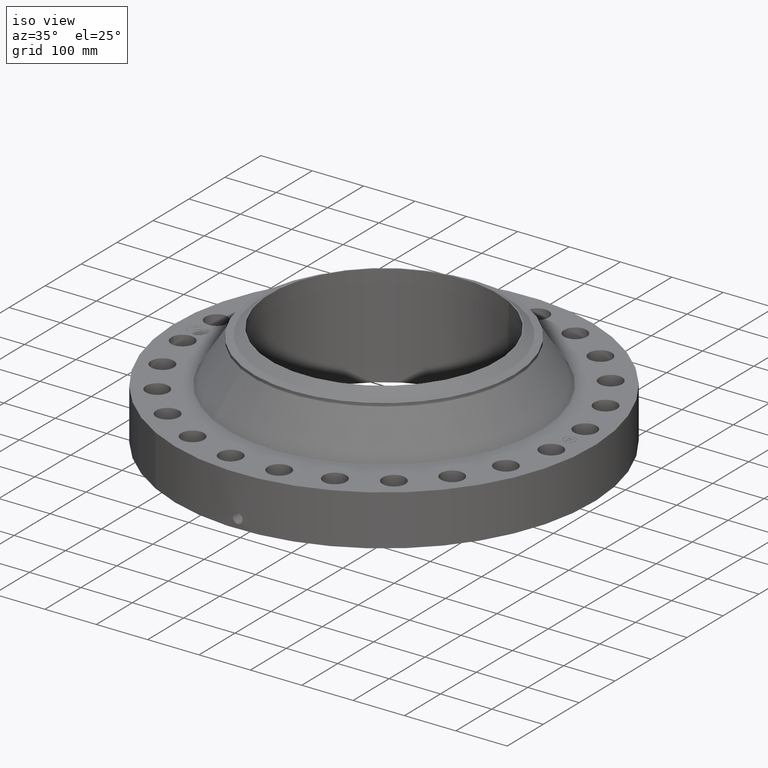
[diagram: clean part render]
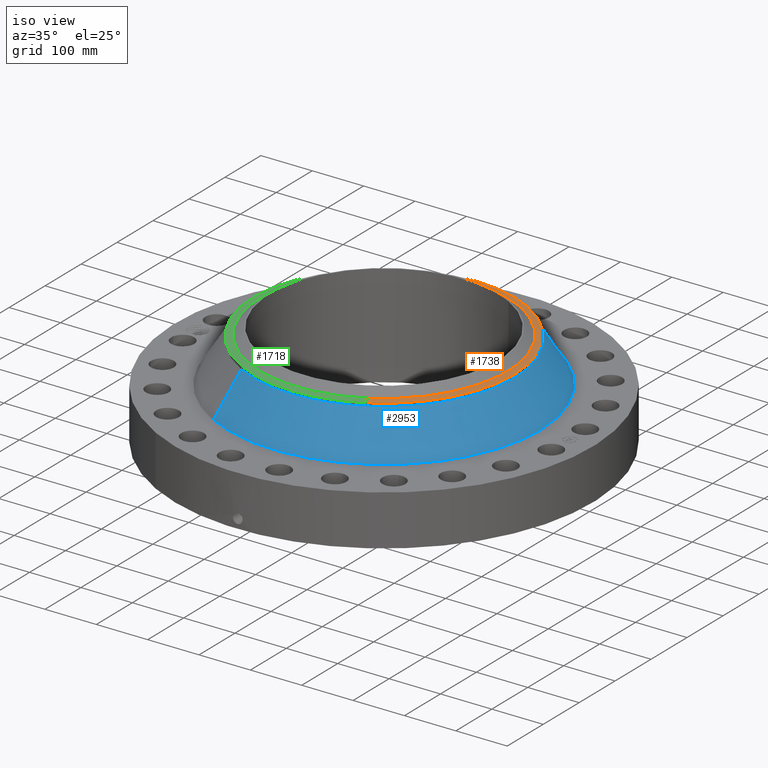
[diagram: same view with three faces highlighted in distinct colors, each labeled with its STEP entity id]
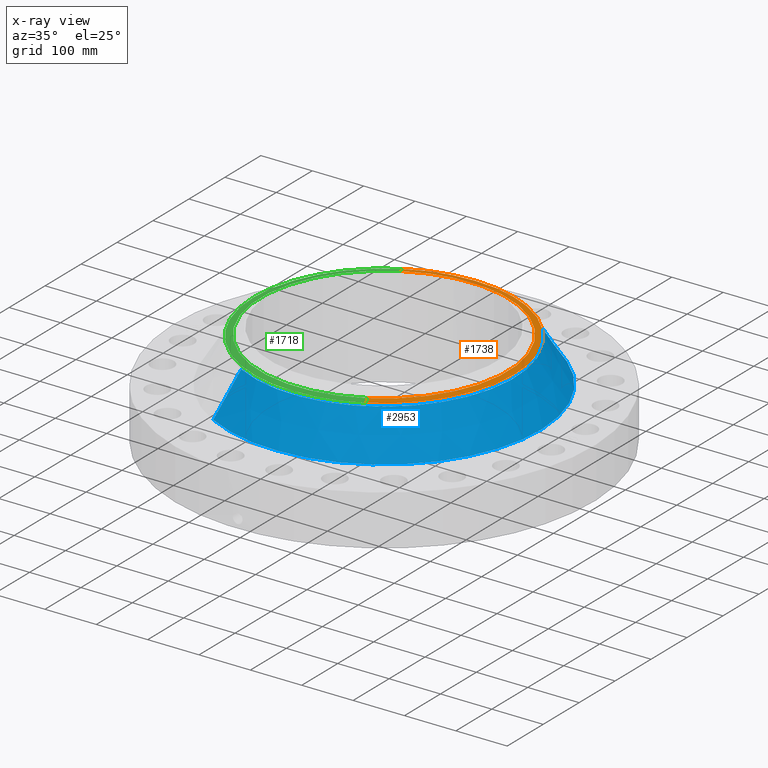
[diagram: x-ray of the same camera — body ghosted, the three highlighted faces saturated]
A machine part, iso view with three faces highlighted in distinct colors.
The next image is the same camera in x-ray (body ghosted, the three faces saturated) — at least one of them is partly hidden behind the body in this view.
Their STEP definitions:

[orange] entity #1738 — the highlighted conical surface has half-angle 80 deg.
#1347=AXIS2_PLACEMENT_3D('Circle Axis2P3D',#1345,#1346,$) ;
#1683=AXIS2_PLACEMENT_3D('Cone Axis2P3D',#1680,#1681,#1682) ;
#1721=AXIS2_PLACEMENT_3D('Circle Axis2P3D',#1719,#1720,$) ;
#1728=AXIS2_PLACEMENT_3D('Circle Axis2P3D',#1726,#1727,$) ;
#1323=CARTESIAN_POINT('Vertex',(-4.55238223415,8.33307978416,7.35641601925)) ;
#1330=CARTESIAN_POINT('Vertex',(4.55238223415,-8.33307978416,7.35641601925)) ;
#1345=CARTESIAN_POINT('Axis2P3D Location',(0.,0.,7.35641601925)) ;
#1680=CARTESIAN_POINT('Axis2P3D Location',(0.,0.,7.35641601925)) ;
#1685=CARTESIAN_POINT('Line Origine',(4.67331881011,-8.55445270155,7.31193699263)) ;
#1689=CARTESIAN_POINT('Vertex',(4.79425538606,-8.77582561894,7.267457966)) ;
#1692=CARTESIAN_POINT('Line Origine',(-4.67331881011,8.55445270155,7.31193699263)) ;
#1696=CARTESIAN_POINT('Vertex',(-4.79425538606,8.77582561894,7.267457966)) ;
#1719=CARTESIAN_POINT('Axis2P3D Location',(0.,0.,7.267457966)) ;
#1723=CARTESIAN_POINT('Vertex',(4.79425538606,8.77582561894,7.267457966)) ;
#1726=CARTESIAN_POINT('Axis2P3D Location',(0.,0.,7.267457966)) ;
#1346=DIRECTION('Axis2P3D Direction',(0.,0.,0.0393700787402)) ;
#1681=DIRECTION('Axis2P3D Direction',(-0.,-0.,-0.0393700787402)) ;
#1682=DIRECTION('Axis2P3D XDirection',(-0.0188750212049,0.0345504945626,0.)) ;
#1686=DIRECTION('Vector Direction',(0.0185882672208,-0.0340255949157,-0.00683654242783)) ;
#1693=DIRECTION('Vector Direction',(-0.0185882672208,0.0340255949157,-0.00683654242783)) ;
#1720=DIRECTION('Axis2P3D Direction',(0.,0.,-0.0393700787402)) ;
#1727=DIRECTION('Axis2P3D Direction',(0.,0.,-0.0393700787402)) ;
#1687=VECTOR('Line Direction',#1686,0.0393700787402) ;
#1694=VECTOR('Line Direction',#1693,0.0393700787402) ;
#1732=ORIENTED_EDGE('',*,*,#1698,.F.) ;
#1733=ORIENTED_EDGE('',*,*,#1349,.F.) ;
#1734=ORIENTED_EDGE('',*,*,#1691,.T.) ;
#1735=ORIENTED_EDGE('',*,*,#1725,.T.) ;
#1736=ORIENTED_EDGE('',*,*,#1730,.F.) ;
#1738=ADVANCED_FACE('PartBody',(#1737),#1684,.T.) ;
#1348=CIRCLE('generated circle',#1347,9.49549380996) ;
#1722=CIRCLE('generated circle',#1721,10.) ;
#1729=CIRCLE('generated circle',#1728,10.) ;
#1684=CONICAL_SURFACE('Cone',#1683,9.49549380996,1.3962634016) ;
#1349=EDGE_CURVE('',#1331,#1324,#1348,.T.) ;
#1691=EDGE_CURVE('',#1331,#1690,#1688,.T.) ;
#1698=EDGE_CURVE('',#1324,#1697,#1695,.T.) ;
#1725=EDGE_CURVE('',#1690,#1724,#1722,.F.) ;
#1730=EDGE_CURVE('',#1697,#1724,#1729,.T.) ;
#1731=EDGE_LOOP('',(#1732,#1733,#1734,#1735,#1736)) ;
#1737=FACE_OUTER_BOUND('',#1731,.T.) ;
#1688=LINE('Line',#1685,#1687) ;
#1695=LINE('Line',#1692,#1694) ;
#1324=VERTEX_POINT('',#1323) ;
#1331=VERTEX_POINT('',#1330) ;
#1690=VERTEX_POINT('',#1689) ;
#1697=VERTEX_POINT('',#1696) ;
#1724=VERTEX_POINT('',#1723) ;

[blue] entity #2953 — the highlighted conical surface has half-angle 32.361 deg.
#2215=AXIS2_PLACEMENT_3D('Circle Axis2P3D',#2213,#2214,$) ;
#2914=AXIS2_PLACEMENT_3D('Cone Axis2P3D',#2911,#2912,#2913) ;
#2944=AXIS2_PLACEMENT_3D('Circle Axis2P3D',#2942,#2943,$) ;
#2190=CARTESIAN_POINT('Vertex',(4.79425538606,8.77582561894,7.03123749356)) ;
#2197=CARTESIAN_POINT('Vertex',(-4.79425538606,-8.77582561894,7.03123749356)) ;
#2213=CARTESIAN_POINT('Axis2P3D Location',(0.,0.,7.03123749356)) ;
#2911=CARTESIAN_POINT('Axis2P3D Location',(0.,0.,7.03123749356)) ;
#2920=CARTESIAN_POINT('Vertex',(-5.73616387529,-10.4999775435,3.93076969427)) ;
#2922=CARTESIAN_POINT('Vertex',(5.73616387529,10.4999775435,3.93076969427)) ;
#2925=CARTESIAN_POINT('Line Origine',(-5.26520963068,-9.6379015812,5.48100359392)) ;
#2930=CARTESIAN_POINT('Line Origine',(5.26520963068,9.6379015812,5.48100359392)) ;
#2942=CARTESIAN_POINT('Axis2P3D Location',(0.,0.,3.93076969427)) ;
#2214=DIRECTION('Axis2P3D Direction',(0.,0.,-0.0393700787402)) ;
#2912=DIRECTION('Axis2P3D Direction',(0.,0.,-0.0393700787402)) ;
#2913=DIRECTION('Axis2P3D XDirection',(0.0188750212049,0.0345504945626,0.)) ;
#2926=DIRECTION('Vector Direction',(-0.0101029031905,-0.0184932402439,-0.0332555937011)) ;
#2931=DIRECTION('Vector Direction',(0.0101029031905,0.0184932402439,-0.0332555937011)) ;
#2943=DIRECTION('Axis2P3D Direction',(0.,0.,-0.0393700787402)) ;
#2927=VECTOR('Line Direction',#2926,0.0393700787402) ;
#2932=VECTOR('Line Direction',#2931,0.0393700787402) ;
#2948=ORIENTED_EDGE('',*,*,#2946,.F.) ;
#2949=ORIENTED_EDGE('',*,*,#2934,.T.) ;
#2950=ORIENTED_EDGE('',*,*,#2217,.T.) ;
#2951=ORIENTED_EDGE('',*,*,#2929,.F.) ;
#2953=ADVANCED_FACE('PartBody',(#2952),#2915,.T.) ;
#2216=CIRCLE('generated circle',#2215,10.) ;
#2945=CIRCLE('generated circle',#2944,11.9646606478) ;
#2915=CONICAL_SURFACE('Cone',#2914,10.,0.56480670096) ;
#2217=EDGE_CURVE('',#2191,#2198,#2216,.T.) ;
#2929=EDGE_CURVE('',#2921,#2198,#2928,.F.) ;
#2934=EDGE_CURVE('',#2923,#2191,#2933,.F.) ;
#2946=EDGE_CURVE('',#2923,#2921,#2945,.T.) ;
#2947=EDGE_LOOP('',(#2948,#2949,#2950,#2951)) ;
#2952=FACE_OUTER_BOUND('',#2947,.T.) ;
#2928=LINE('Line',#2925,#2927) ;
#2933=LINE('Line',#2930,#2932) ;
#2191=VERTEX_POINT('',#2190) ;
#2198=VERTEX_POINT('',#2197) ;
#2921=VERTEX_POINT('',#2920) ;
#2923=VERTEX_POINT('',#2922) ;

[green] entity #1718 — the highlighted conical surface has half-angle 80 deg.
#1328=AXIS2_PLACEMENT_3D('Circle Axis2P3D',#1326,#1327,$) ;
#1683=AXIS2_PLACEMENT_3D('Cone Axis2P3D',#1680,#1681,#1682) ;
#1701=AXIS2_PLACEMENT_3D('Circle Axis2P3D',#1699,#1700,$) ;
#1708=AXIS2_PLACEMENT_3D('Circle Axis2P3D',#1706,#1707,$) ;
#1323=CARTESIAN_POINT('Vertex',(-4.55238223415,8.33307978416,7.35641601925)) ;
#1326=CARTESIAN_POINT('Axis2P3D Location',(0.,0.,7.35641601925)) ;
#1330=CARTESIAN_POINT('Vertex',(4.55238223415,-8.33307978416,7.35641601925)) ;
#1680=CARTESIAN_POINT('Axis2P3D Location',(0.,0.,7.35641601925)) ;
#1685=CARTESIAN_POINT('Line Origine',(4.67331881011,-8.55445270155,7.31193699263)) ;
#1689=CARTESIAN_POINT('Vertex',(4.79425538606,-8.77582561894,7.267457966)) ;
#1692=CARTESIAN_POINT('Line Origine',(-4.67331881011,8.55445270155,7.31193699263)) ;
#1696=CARTESIAN_POINT('Vertex',(-4.79425538606,8.77582561894,7.267457966)) ;
#1699=CARTESIAN_POINT('Axis2P3D Location',(0.,0.,7.267457966)) ;
#1703=CARTESIAN_POINT('Vertex',(-4.79425538606,-8.77582561894,7.267457966)) ;
#1706=CARTESIAN_POINT('Axis2P3D Location',(0.,0.,7.267457966)) ;
#1327=DIRECTION('Axis2P3D Direction',(0.,0.,0.0393700787402)) ;
#1681=DIRECTION('Axis2P3D Direction',(-0.,-0.,-0.0393700787402)) ;
#1682=DIRECTION('Axis2P3D XDirection',(-0.0188750212049,0.0345504945626,0.)) ;
#1686=DIRECTION('Vector Direction',(0.0185882672208,-0.0340255949157,-0.00683654242783)) ;
#1693=DIRECTION('Vector Direction',(-0.0185882672208,0.0340255949157,-0.00683654242783)) ;
#1700=DIRECTION('Axis2P3D Direction',(0.,0.,-0.0393700787402)) ;
#1707=DIRECTION('Axis2P3D Direction',(0.,0.,-0.0393700787402)) ;
#1687=VECTOR('Line Direction',#1686,0.0393700787402) ;
#1694=VECTOR('Line Direction',#1693,0.0393700787402) ;
#1712=ORIENTED_EDGE('',*,*,#1691,.F.) ;
#1713=ORIENTED_EDGE('',*,*,#1332,.F.) ;
#1714=ORIENTED_EDGE('',*,*,#1698,.T.) ;
#1715=ORIENTED_EDGE('',*,*,#1705,.T.) ;
#1716=ORIENTED_EDGE('',*,*,#1710,.F.) ;
#1718=ADVANCED_FACE('PartBody',(#1717),#1684,.T.) ;
#1329=CIRCLE('generated circle',#1328,9.49549380996) ;
#1702=CIRCLE('generated circle',#1701,10.) ;
#1709=CIRCLE('generated circle',#1708,10.) ;
#1684=CONICAL_SURFACE('Cone',#1683,9.49549380996,1.3962634016) ;
#1332=EDGE_CURVE('',#1324,#1331,#1329,.T.) ;
#1691=EDGE_CURVE('',#1331,#1690,#1688,.T.) ;
#1698=EDGE_CURVE('',#1324,#1697,#1695,.T.) ;
#1705=EDGE_CURVE('',#1697,#1704,#1702,.F.) ;
#1710=EDGE_CURVE('',#1690,#1704,#1709,.T.) ;
#1711=EDGE_LOOP('',(#1712,#1713,#1714,#1715,#1716)) ;
#1717=FACE_OUTER_BOUND('',#1711,.T.) ;
#1688=LINE('Line',#1685,#1687) ;
#1695=LINE('Line',#1692,#1694) ;
#1324=VERTEX_POINT('',#1323) ;
#1331=VERTEX_POINT('',#1330) ;
#1690=VERTEX_POINT('',#1689) ;
#1697=VERTEX_POINT('',#1696) ;
#1704=VERTEX_POINT('',#1703) ;